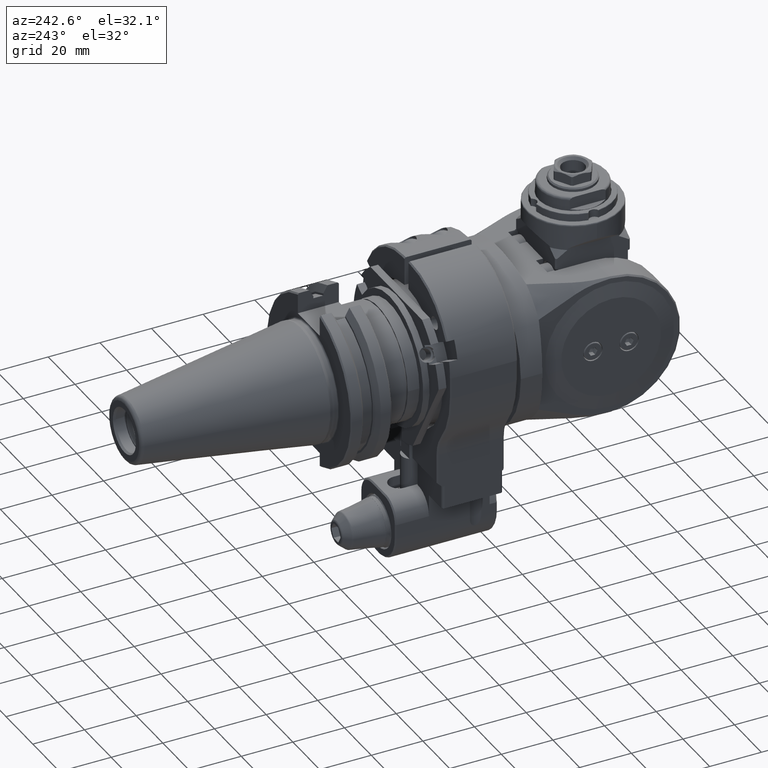
[diagram: clean part render]
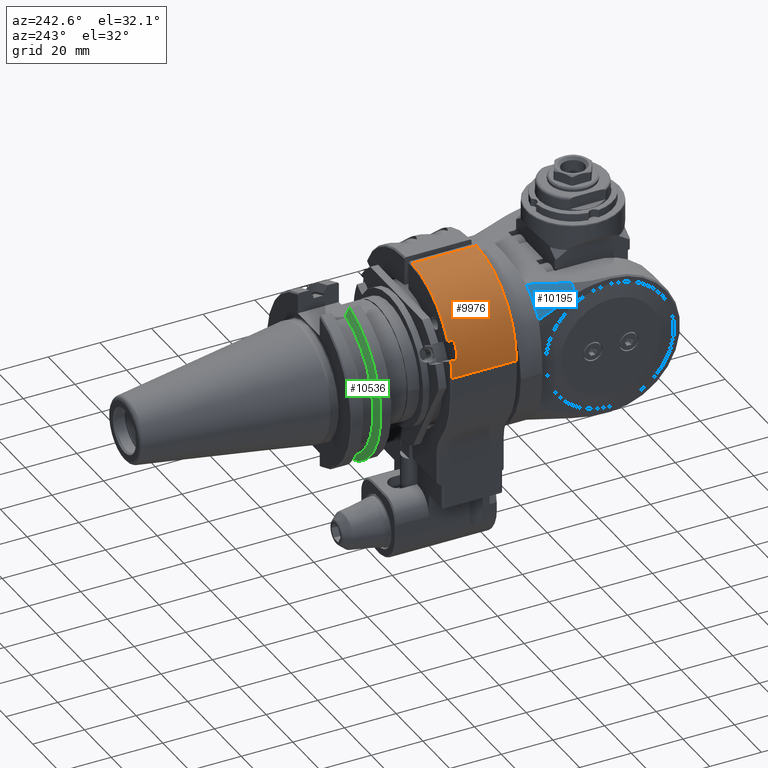
[diagram: same view with three faces highlighted in distinct colors, each labeled with its STEP entity id]
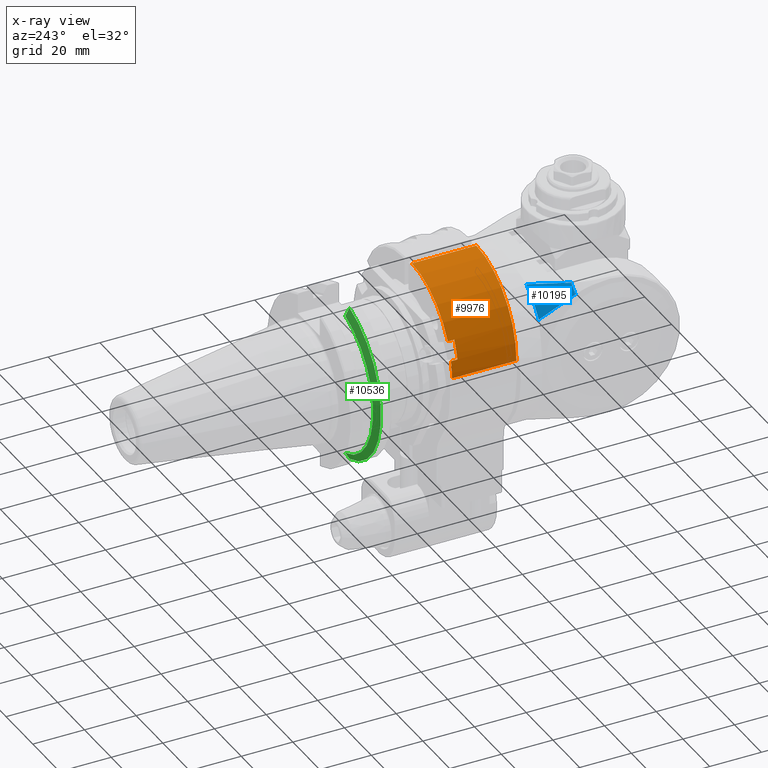
[diagram: x-ray of the same camera — body ghosted, the three highlighted faces saturated]
A machine part, auxiliary view with three faces highlighted in distinct colors.
The next image is the same camera in x-ray (body ghosted, the three faces saturated) — at least one of them is partly hidden behind the body in this view.
Their STEP definitions:

[orange] entity #9976 — the highlighted cylindrical surface (partial cylindrical patch) has radius 30 mm, axis along (0, 1, 0).
#391=LINE('',#15149,#1227);
#392=LINE('',#15151,#1228);
#393=LINE('',#15155,#1229);
#394=LINE('',#15158,#1230);
#1227=VECTOR('',#11941,25.00000004466);
#1228=VECTOR('',#11942,25.00000004466);
#1229=VECTOR('',#11945,2.500000044669);
#1230=VECTOR('',#11948,2.500000044661);
#2012=CYLINDRICAL_SURFACE('',#10673,30.);
#2282=FACE_OUTER_BOUND('',#2904,.T.);
#2904=EDGE_LOOP('',(#6740,#6741,#6742,#6743,#6744,#6745,#6746,#6747));
#3602=CIRCLE('',#10672,30.);
#3603=CIRCLE('',#10674,30.);
#3604=CIRCLE('',#10675,30.);
#3605=CIRCLE('',#10676,30.);
#4139=VERTEX_POINT('',#15138);
#4140=VERTEX_POINT('',#15142);
#4141=VERTEX_POINT('',#15146);
#4142=VERTEX_POINT('',#15147);
#4143=VERTEX_POINT('',#15150);
#4144=VERTEX_POINT('',#15152);
#4145=VERTEX_POINT('',#15154);
#4146=VERTEX_POINT('',#15156);
#5155=EDGE_CURVE('',#4139,#4140,#3602,.T.);
#5157=EDGE_CURVE('',#4141,#4142,#3603,.T.);
#5158=EDGE_CURVE('',#4141,#4140,#391,.T.);
#5159=EDGE_CURVE('',#4139,#4143,#392,.T.);
#5160=EDGE_CURVE('',#4144,#4143,#3604,.T.);
#5161=EDGE_CURVE('',#4144,#4145,#393,.T.);
#5162=EDGE_CURVE('',#4146,#4145,#3605,.T.);
#5163=EDGE_CURVE('',#4146,#4142,#394,.T.);
#6740=ORIENTED_EDGE('',*,*,#5157,.F.);
#6741=ORIENTED_EDGE('',*,*,#5158,.T.);
#6742=ORIENTED_EDGE('',*,*,#5155,.F.);
#6743=ORIENTED_EDGE('',*,*,#5159,.T.);
#6744=ORIENTED_EDGE('',*,*,#5160,.F.);
#6745=ORIENTED_EDGE('',*,*,#5161,.T.);
#6746=ORIENTED_EDGE('',*,*,#5162,.F.);
#6747=ORIENTED_EDGE('',*,*,#5163,.T.);
#9976=ADVANCED_FACE('',(#2282),#2012,.T.);
#10672=AXIS2_PLACEMENT_3D('',#15143,#11934,#11935);
#10673=AXIS2_PLACEMENT_3D('',#15145,#11937,#11938);
#10674=AXIS2_PLACEMENT_3D('',#15148,#11939,#11940);
#10675=AXIS2_PLACEMENT_3D('',#15153,#11943,#11944);
#10676=AXIS2_PLACEMENT_3D('',#15157,#11946,#11947);
#11934=DIRECTION('center_axis',(0.,-1.,0.));
#11935=DIRECTION('ref_axis',(0.,0.,1.));
#11937=DIRECTION('center_axis',(0.,1.,0.));
#11938=DIRECTION('ref_axis',(-0.707106781186548,0.,0.707106781186547));
#11939=DIRECTION('center_axis',(0.,1.,0.));
#11940=DIRECTION('ref_axis',(-1.,0.,0.));
#11941=DIRECTION('',(0.,-1.,0.));
#11942=DIRECTION('',(0.,1.,0.));
#11943=DIRECTION('center_axis',(0.,1.,0.));
#11944=DIRECTION('ref_axis',(-0.707106781186547,0.,0.707106781186547));
#11945=DIRECTION('',(-1.381295053637E-12,-1.,-2.796696157981E-12));
#11946=DIRECTION('center_axis',(0.,1.,0.));
#11947=DIRECTION('ref_axis',(-0.975587915267363,0.,0.219609242939092));
#11948=DIRECTION('',(0.,1.,1.136868356907E-14));
#15138=CARTESIAN_POINT('',(-3.,0.5,38.));
#15142=CARTESIAN_POINT('',(-33.,0.5,8.));
#15143=CARTESIAN_POINT('Origin',(-3.,0.5,8.));
#15145=CARTESIAN_POINT('Origin',(-3.,56.,8.));
#15146=CARTESIAN_POINT('',(-33.,25.50000004466,8.));
#15147=CARTESIAN_POINT('',(-32.26763745802,25.50000004466,14.58827728817));
#15148=CARTESIAN_POINT('Origin',(-3.,25.50000004466,8.));
#15149=CARTESIAN_POINT('',(-33.,25.50000004466,8.));
#15150=CARTESIAN_POINT('',(-3.,25.50000004466,38.));
#15151=CARTESIAN_POINT('',(-3.,0.5,38.));
#15152=CARTESIAN_POINT('',(-29.89114394987,25.50000004467,21.29911189018));
#15153=CARTESIAN_POINT('Origin',(-3.,25.50000004466,8.));
#15154=CARTESIAN_POINT('',(-29.89114394987,23.,21.29911189017));
#15155=CARTESIAN_POINT('',(-29.89114394987,25.50000004467,21.29911189018));
#15156=CARTESIAN_POINT('',(-32.26763745802,23.,14.58827728817));
#15157=CARTESIAN_POINT('Origin',(-3.,23.,8.));
#15158=CARTESIAN_POINT('',(-32.26763745802,23.,14.58827728817));

[blue] entity #10195 — the highlighted conical surface has half-angle 15 deg.
#46=(
BOUNDED_CURVE()
B_SPLINE_CURVE(2,(#17055,#17056,#17057),.UNSPECIFIED.,.F.,.F.)
B_SPLINE_CURVE_WITH_KNOTS((3,3),(-1.84316802678715,-0.141414358574829),
 .UNSPECIFIED.)
CURVE()
GEOMETRIC_REPRESENTATION_ITEM()
RATIONAL_B_SPLINE_CURVE((1.00685066619267,1.00800932103646,1.00118868032827))
REPRESENTATION_ITEM('')
);
#47=(
BOUNDED_CURVE()
B_SPLINE_CURVE(2,(#17101,#17102,#17103),.UNSPECIFIED.,.F.,.F.)
B_SPLINE_CURVE_WITH_KNOTS((3,3),(-2.13843015183133,-0.16330558134385),
 .UNSPECIFIED.)
CURVE()
GEOMETRIC_REPRESENTATION_ITEM()
RATIONAL_B_SPLINE_CURVE((1.01705775176549,1.01349702759246,1.00196197657113))
REPRESENTATION_ITEM('')
);
#253=CONICAL_SURFACE('',#11053,34.89814565723,0.261799387799149);
#2501=FACE_OUTER_BOUND('',#3155,.T.);
#3155=EDGE_LOOP('',(#7820,#7821,#7822,#7823));
#3740=CIRCLE('',#11014,33.);
#3760=CIRCLE('',#11054,36.79629131445);
#4414=VERTEX_POINT('',#16794);
#4416=VERTEX_POINT('',#16797);
#4489=VERTEX_POINT('',#17054);
#4494=VERTEX_POINT('',#17092);
#5603=EDGE_CURVE('',#4416,#4414,#3740,.T.);
#5690=EDGE_CURVE('',#4489,#4416,#46,.T.);
#5698=EDGE_CURVE('',#4494,#4414,#47,.T.);
#5707=EDGE_CURVE('',#4489,#4494,#3760,.T.);
#7820=ORIENTED_EDGE('',*,*,#5707,.F.);
#7821=ORIENTED_EDGE('',*,*,#5690,.T.);
#7822=ORIENTED_EDGE('',*,*,#5603,.T.);
#7823=ORIENTED_EDGE('',*,*,#5698,.F.);
#10195=ADVANCED_FACE('',(#2501),#253,.T.);
#11014=AXIS2_PLACEMENT_3D('',#16798,#12899,#12900);
#11053=AXIS2_PLACEMENT_3D('',#17152,#13035,#13036);
#11054=AXIS2_PLACEMENT_3D('',#17153,#13037,#13038);
#12899=DIRECTION('center_axis',(0.,-1.,0.));
#12900=DIRECTION('ref_axis',(-0.552770798392605,0.,0.833333333333308));
#13035=DIRECTION('center_axis',(0.,-1.,0.));
#13036=DIRECTION('ref_axis',(0.,0.,1.));
#13037=DIRECTION('center_axis',(0.,-1.,0.));
#13038=DIRECTION('ref_axis',(-0.664421649911685,0.,0.747357927052783));
#16794=CARTESIAN_POINT('',(-27.5,-11.,18.24143634695));
#16797=CARTESIAN_POINT('',(-18.24143634695,-11.,27.5));
#16798=CARTESIAN_POINT('Origin',(0.,-11.,0.));
#17054=CARTESIAN_POINT('',(-24.44825258578,-25.16795206587,27.5));
#17055=CARTESIAN_POINT('Ctrl Pts',(-24.4482525858497,-25.1679520660357,
27.5));
#17056=CARTESIAN_POINT('Ctrl Pts',(-21.1760469405276,-17.0540098145487,
27.5));
#17057=CARTESIAN_POINT('Ctrl Pts',(-18.2414363469572,-10.9999999999965,
27.5));
#17092=CARTESIAN_POINT('',(-27.50000000003,-25.16795206526,24.4482525855));
#17101=CARTESIAN_POINT('Ctrl Pts',(-27.5,-25.1679520651453,24.4482525854906));
#17102=CARTESIAN_POINT('Ctrl Pts',(-27.5,-17.0540098142192,21.1760469403679));
#17103=CARTESIAN_POINT('Ctrl Pts',(-27.5,-10.9999999999965,18.2414363469572));
#17152=CARTESIAN_POINT('Origin',(0.,-18.08397603294,0.));
#17153=CARTESIAN_POINT('Origin',(0.,-25.16795206587,0.));

[green] entity #10536 — the highlighted conical surface has half-angle 60 deg.
#187=B_SPLINE_CURVE_WITH_KNOTS('',3,(#19834,#19835,#19836,#19837,#19838,
#19839,#19840,#19841,#19842,#19843),.UNSPECIFIED.,.F.,.F.,(4,3,3,4),(4.56912624577886E-7,
0.3333333333333,0.6666666666667,1.),.UNSPECIFIED.);
#194=B_SPLINE_CURVE_WITH_KNOTS('',3,(#19920,#19921,#19922,#19923,#19924,
#19925,#19926,#19927,#19928,#19929),.UNSPECIFIED.,.F.,.F.,(4,3,3,4),(0.,
0.3333333333333,0.6666666666667,0.999999543644371),.UNSPECIFIED.);
#302=CONICAL_SURFACE('',#11683,30.35685371176,1.0471975511966);
#2842=FACE_OUTER_BOUND('',#3539,.T.);
#3539=EDGE_LOOP('',(#9523,#9524,#9525,#9526));
#3998=CIRCLE('',#11595,28.96370742351);
#4044=CIRCLE('',#11684,31.75);
#4964=VERTEX_POINT('',#19831);
#4965=VERTEX_POINT('',#19833);
#4973=VERTEX_POINT('',#19882);
#4980=VERTEX_POINT('',#19918);
#6431=EDGE_CURVE('',#4965,#4964,#187,.T.);
#6443=EDGE_CURVE('',#4973,#4964,#3998,.T.);
#6452=EDGE_CURVE('',#4973,#4980,#194,.T.);
#6535=EDGE_CURVE('',#4980,#4965,#4044,.T.);
#9523=ORIENTED_EDGE('',*,*,#6452,.T.);
#9524=ORIENTED_EDGE('',*,*,#6535,.T.);
#9525=ORIENTED_EDGE('',*,*,#6431,.T.);
#9526=ORIENTED_EDGE('',*,*,#6443,.F.);
#10536=ADVANCED_FACE('',(#2842),#302,.T.);
#11595=AXIS2_PLACEMENT_3D('',#19884,#14511,#14512);
#11683=AXIS2_PLACEMENT_3D('',#20158,#14721,#14722);
#11684=AXIS2_PLACEMENT_3D('',#20159,#14723,#14724);
#14511=DIRECTION('center_axis',(0.,1.,0.));
#14512=DIRECTION('ref_axis',(-0.282819456785104,0.,-0.959173162084813));
#14721=DIRECTION('center_axis',(0.,-1.,0.));
#14722=DIRECTION('ref_axis',(0.,0.,-1.));
#14723=DIRECTION('center_axis',(0.,1.,0.));
#14724=DIRECTION('ref_axis',(-0.258000000000008,0.,-0.96614491666623));
#19831=CARTESIAN_POINT('',(-8.19149903371759,53.9479991771335,27.7812135494225));
#19833=CARTESIAN_POINT('',(-8.19150055397077,52.3393332566973,30.6751009777986));
#19834=CARTESIAN_POINT('Ctrl Pts',(-8.19150074281025,52.3393332404683,30.675100968746));
#19835=CARTESIAN_POINT('Ctrl Pts',(-8.19150074686271,52.5327166982235,30.3284138708123));
#19836=CARTESIAN_POINT('Ctrl Pts',(-8.19150016189115,52.7212037812401,29.9901131864542));
#19837=CARTESIAN_POINT('Ctrl Pts',(-8.19150000000033,52.9046766693635,29.6604323319398));
#19838=CARTESIAN_POINT('Ctrl Pts',(-8.19149983810929,53.0881498089805,29.3307510255187));
#19839=CARTESIAN_POINT('Ctrl Pts',(-8.19150015562556,53.2666090418591,29.0096897378535));
#19840=CARTESIAN_POINT('Ctrl Pts',(-8.19150000000034,53.4404504066915,28.6965605558041));
#19841=CARTESIAN_POINT('Ctrl Pts',(-8.19149984437512,53.6142917715238,28.3834313737547));
#19842=CARTESIAN_POINT('Ctrl Pts',(-8.19149915445926,53.7835149529698,28.0782341254488));
#19843=CARTESIAN_POINT('Ctrl Pts',(-8.19149915046058,53.9479974420804,27.7812157852763));
#19882=CARTESIAN_POINT('',(-8.19149903383299,53.947999177238,-27.7812135490957));
#19884=CARTESIAN_POINT('Origin',(0.,53.94800004466,0.));
#19918=CARTESIAN_POINT('',(-8.19150055406649,52.3393332572777,-30.6751009774097));
#19920=CARTESIAN_POINT('Ctrl Pts',(-8.1914991505618,53.9479974423941,-27.78121578468));
#19921=CARTESIAN_POINT('Ctrl Pts',(-8.19149915455288,53.7837804911013,-28.0777546233435));
#19922=CARTESIAN_POINT('Ctrl Pts',(-8.19149984530484,53.6147351163956,-28.3826320042846));
#19923=CARTESIAN_POINT('Ctrl Pts',(-8.19149999999982,53.4409905518213,-28.6955876260135));
#19924=CARTESIAN_POINT('Ctrl Pts',(-8.1915001546948,53.2672459872469,-29.0085432477424));
#19925=CARTESIAN_POINT('Ctrl Pts',(-8.19149983721716,53.0888025652621,-29.3295772916285));
#19926=CARTESIAN_POINT('Ctrl Pts',(-8.19149999999981,52.9052419933804,-29.6594165047061));
#19927=CARTESIAN_POINT('Ctrl Pts',(-8.19150016278223,52.7216816728055,-29.9892552662117));
#19928=CARTESIAN_POINT('Ctrl Pts',(-8.19150074677608,52.5330038965972,-30.3278989975801));
#19929=CARTESIAN_POINT('Ctrl Pts',(-8.19150074271858,52.3393332407819,-30.6751009682083));
#20158=CARTESIAN_POINT('Origin',(0.,53.14366666012,0.));
#20159=CARTESIAN_POINT('Origin',(0.,52.33933327558,0.));